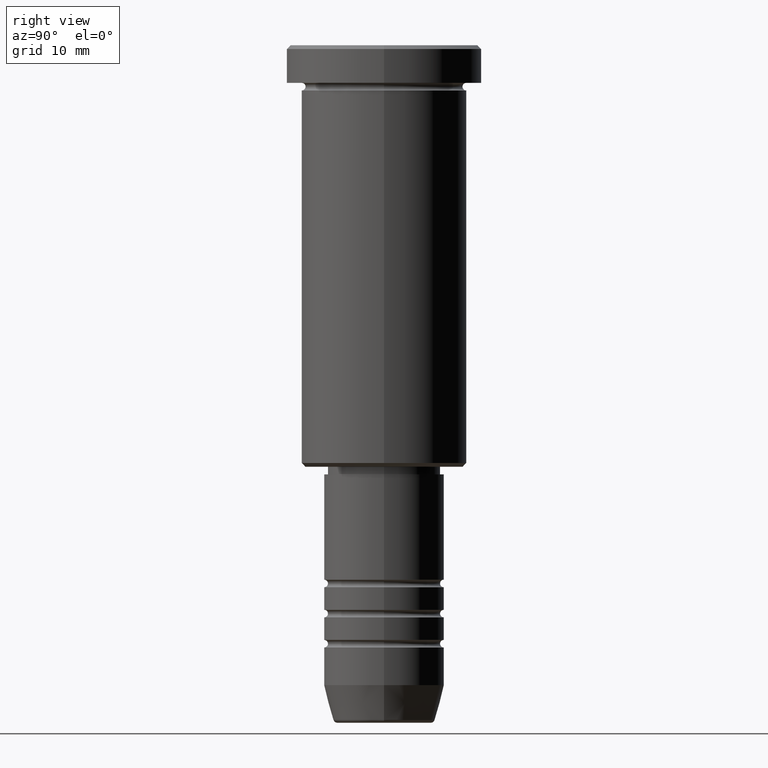
[diagram: clean part render]
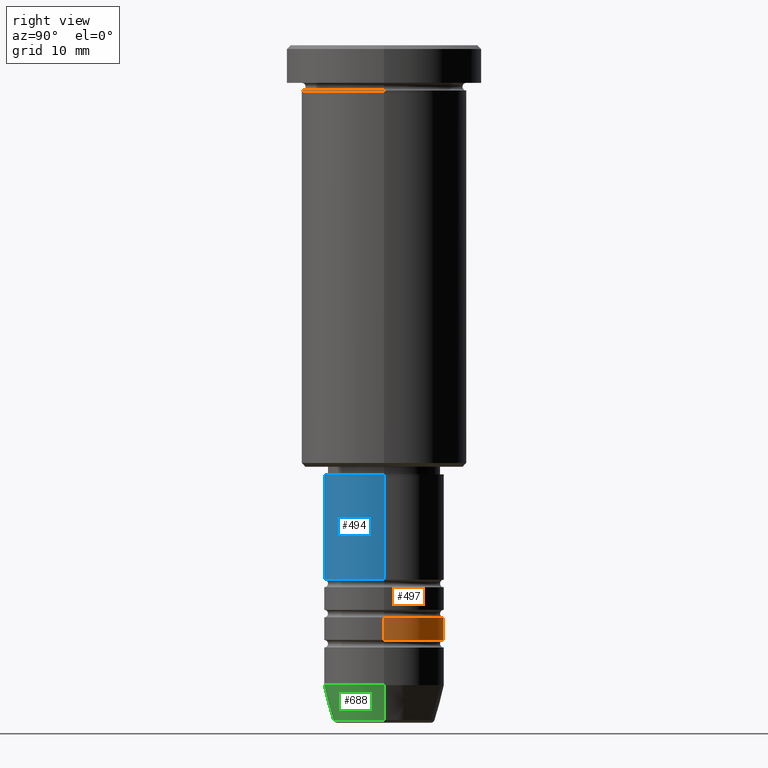
[diagram: same view with three faces highlighted in distinct colors, each labeled with its STEP entity id]
A machine part, right view with three faces highlighted in distinct colors.
Their STEP definitions:

[orange] entity #497 — the highlighted cylindrical surface (partial cylindrical patch) has radius 8 mm, axis along (-0, -0, 1).
#10 = ORIENTED_EDGE ( 'NONE', *, *, #776, .F. ) ;
#24 = DIRECTION ( 'NONE',  ( 1.000000000000000000, 0.000000000000000000, 0.000000000000000000 ) ) ;
#37 = CIRCLE ( 'NONE', #577, 8.000000000000000000 ) ;
#49 = VERTEX_POINT ( 'NONE', #903 ) ;
#50 = CARTESIAN_POINT ( 'NONE',  ( 8.000000000000000000, 0.000000000000000000, 0.000000000000000000 ) ) ;
#110 = DIRECTION ( 'NONE',  ( -0.000000000000000000, -0.000000000000000000, 1.000000000000000000 ) ) ;
#128 = LINE ( 'NONE', #50, #877 ) ;
#151 = CIRCLE ( 'NONE', #483, 8.000000000000000000 ) ;
#223 = EDGE_LOOP ( 'NONE', ( #830, #308, #10, #781 ) ) ;
#251 = FACE_OUTER_BOUND ( 'NONE', #223, .T. ) ;
#308 = ORIENTED_EDGE ( 'NONE', *, *, #641, .T. ) ;
#362 = VECTOR ( 'NONE', #482, 1000.000000000000000 ) ;
#365 = CYLINDRICAL_SURFACE ( 'NONE', #650, 8.000000000000000000 ) ;
#370 = EDGE_CURVE ( 'NONE', #407, #1073, #128, .T. ) ;
#372 = CARTESIAN_POINT ( 'NONE',  ( 8.000000000000000000, 0.000000000000000000, -75.99999999999998579 ) ) ;
#380 = CARTESIAN_POINT ( 'NONE',  ( 0.000000000000000000, 0.000000000000000000, -75.99999999999998579 ) ) ;
#407 = VERTEX_POINT ( 'NONE', #418 ) ;
#418 = CARTESIAN_POINT ( 'NONE',  ( 8.000000000000000000, 0.000000000000000000, -78.99999999999997158 ) ) ;
#456 = CARTESIAN_POINT ( 'NONE',  ( 0.000000000000000000, 0.000000000000000000, -78.99999999999997158 ) ) ;
#466 = DIRECTION ( 'NONE',  ( 1.000000000000000000, 0.000000000000000000, 0.000000000000000000 ) ) ;
#482 = DIRECTION ( 'NONE',  ( -0.000000000000000000, -0.000000000000000000, 1.000000000000000000 ) ) ;
#483 = AXIS2_PLACEMENT_3D ( 'NONE', #380, #110, #24 ) ;
#497 = ADVANCED_FACE ( 'NONE', ( #251 ), #365, .T. ) ;
#573 = CARTESIAN_POINT ( 'NONE',  ( -8.000000000000000000, 9.797174393178825657E-16, 0.000000000000000000 ) ) ;
#577 = AXIS2_PLACEMENT_3D ( 'NONE', #456, #638, #466 ) ;
#586 = EDGE_CURVE ( 'NONE', #407, #1001, #37, .T. ) ;
#638 = DIRECTION ( 'NONE',  ( -0.000000000000000000, -0.000000000000000000, 1.000000000000000000 ) ) ;
#641 = EDGE_CURVE ( 'NONE', #1001, #49, #672, .T. ) ;
#650 = AXIS2_PLACEMENT_3D ( 'NONE', #909, #805, #817 ) ;
#672 = LINE ( 'NONE', #573, #362 ) ;
#704 = DIRECTION ( 'NONE',  ( -0.000000000000000000, -0.000000000000000000, 1.000000000000000000 ) ) ;
#717 = CARTESIAN_POINT ( 'NONE',  ( -8.000000000000000000, 9.797174393178825657E-16, -78.99999999999997158 ) ) ;
#776 = EDGE_CURVE ( 'NONE', #1073, #49, #151, .T. ) ;
#781 = ORIENTED_EDGE ( 'NONE', *, *, #370, .F. ) ;
#805 = DIRECTION ( 'NONE',  ( -0.000000000000000000, -0.000000000000000000, 1.000000000000000000 ) ) ;
#817 = DIRECTION ( 'NONE',  ( 1.000000000000000000, 0.000000000000000000, 0.000000000000000000 ) ) ;
#830 = ORIENTED_EDGE ( 'NONE', *, *, #586, .T. ) ;
#877 = VECTOR ( 'NONE', #704, 1000.000000000000000 ) ;
#903 = CARTESIAN_POINT ( 'NONE',  ( -8.000000000000000000, 9.797174393178825657E-16, -75.99999999999998579 ) ) ;
#909 = CARTESIAN_POINT ( 'NONE',  ( 0.000000000000000000, 0.000000000000000000, 0.000000000000000000 ) ) ;
#1001 = VERTEX_POINT ( 'NONE', #717 ) ;
#1073 = VERTEX_POINT ( 'NONE', #372 ) ;

[blue] entity #494 — the highlighted cylindrical surface (partial cylindrical patch) has radius 8 mm, axis along (-0, -0, 1).
#44 = VERTEX_POINT ( 'NONE', #1080 ) ;
#113 = EDGE_LOOP ( 'NONE', ( #1076, #553, #336, #544 ) ) ;
#127 = CARTESIAN_POINT ( 'NONE',  ( -8.000000000000000000, 9.797174393178825657E-16, -57.00000000000000711 ) ) ;
#130 = AXIS2_PLACEMENT_3D ( 'NONE', #175, #1082, #459 ) ;
#140 = EDGE_CURVE ( 'NONE', #410, #1117, #419, .T. ) ;
#175 = CARTESIAN_POINT ( 'NONE',  ( 0.000000000000000000, 0.000000000000000000, 0.000000000000000000 ) ) ;
#253 = DIRECTION ( 'NONE',  ( 1.000000000000000000, 0.000000000000000000, 0.000000000000000000 ) ) ;
#311 = DIRECTION ( 'NONE',  ( 1.000000000000000000, 0.000000000000000000, 0.000000000000000000 ) ) ;
#336 = ORIENTED_EDGE ( 'NONE', *, *, #477, .T. ) ;
#379 = VECTOR ( 'NONE', #555, 1000.000000000000000 ) ;
#410 = VERTEX_POINT ( 'NONE', #709 ) ;
#419 = CIRCLE ( 'NONE', #783, 8.000000000000000000 ) ;
#438 = CYLINDRICAL_SURFACE ( 'NONE', #130, 8.000000000000000000 ) ;
#459 = DIRECTION ( 'NONE',  ( 1.000000000000000000, 0.000000000000000000, 0.000000000000000000 ) ) ;
#477 = EDGE_CURVE ( 'NONE', #1117, #44, #518, .T. ) ;
#494 = ADVANCED_FACE ( 'NONE', ( #643 ), #438, .T. ) ;
#503 = AXIS2_PLACEMENT_3D ( 'NONE', #774, #1050, #311 ) ;
#514 = EDGE_CURVE ( 'NONE', #410, #889, #734, .T. ) ;
#518 = LINE ( 'NONE', #878, #860 ) ;
#544 = ORIENTED_EDGE ( 'NONE', *, *, #898, .F. ) ;
#553 = ORIENTED_EDGE ( 'NONE', *, *, #140, .T. ) ;
#555 = DIRECTION ( 'NONE',  ( -0.000000000000000000, -0.000000000000000000, 1.000000000000000000 ) ) ;
#620 = CARTESIAN_POINT ( 'NONE',  ( -8.000000000000000000, 9.797174393178825657E-16, 0.000000000000000000 ) ) ;
#623 = CARTESIAN_POINT ( 'NONE',  ( 0.000000000000000000, 0.000000000000000000, -70.99999999999998579 ) ) ;
#643 = FACE_OUTER_BOUND ( 'NONE', #113, .T. ) ;
#709 = CARTESIAN_POINT ( 'NONE',  ( -8.000000000000000000, 9.797174393178825657E-16, -70.99999999999998579 ) ) ;
#734 = LINE ( 'NONE', #620, #379 ) ;
#748 = CIRCLE ( 'NONE', #503, 8.000000000000000000 ) ;
#774 = CARTESIAN_POINT ( 'NONE',  ( 0.000000000000000000, 0.000000000000000000, -57.00000000000000711 ) ) ;
#783 = AXIS2_PLACEMENT_3D ( 'NONE', #623, #814, #253 ) ;
#814 = DIRECTION ( 'NONE',  ( -0.000000000000000000, -0.000000000000000000, 1.000000000000000000 ) ) ;
#860 = VECTOR ( 'NONE', #990, 1000.000000000000000 ) ;
#878 = CARTESIAN_POINT ( 'NONE',  ( 8.000000000000000000, 0.000000000000000000, 0.000000000000000000 ) ) ;
#889 = VERTEX_POINT ( 'NONE', #127 ) ;
#898 = EDGE_CURVE ( 'NONE', #889, #44, #748, .T. ) ;
#990 = DIRECTION ( 'NONE',  ( -0.000000000000000000, -0.000000000000000000, 1.000000000000000000 ) ) ;
#1050 = DIRECTION ( 'NONE',  ( -0.000000000000000000, -0.000000000000000000, 1.000000000000000000 ) ) ;
#1076 = ORIENTED_EDGE ( 'NONE', *, *, #514, .F. ) ;
#1080 = CARTESIAN_POINT ( 'NONE',  ( 8.000000000000000000, 0.000000000000000000, -57.00000000000000711 ) ) ;
#1082 = DIRECTION ( 'NONE',  ( -0.000000000000000000, -0.000000000000000000, 1.000000000000000000 ) ) ;
#1096 = CARTESIAN_POINT ( 'NONE',  ( 8.000000000000000000, 0.000000000000000000, -70.99999999999998579 ) ) ;
#1117 = VERTEX_POINT ( 'NONE', #1096 ) ;

[green] entity #688 — the highlighted conical surface has half-angle 15 deg.
#9 = DIRECTION ( 'NONE',  ( -0.000000000000000000, -0.000000000000000000, 1.000000000000000000 ) ) ;
#12 = DIRECTION ( 'NONE',  ( 1.000000000000000000, 0.000000000000000000, 0.000000000000000000 ) ) ;
#56 = DIRECTION ( 'NONE',  ( 1.000000000000000000, 0.000000000000000000, 0.000000000000000000 ) ) ;
#95 = VERTEX_POINT ( 'NONE', #702 ) ;
#99 = CARTESIAN_POINT ( 'NONE',  ( 6.759553456999436882, 0.000000000000000000, -89.62940952255125637 ) ) ;
#106 = CARTESIAN_POINT ( 'NONE',  ( 8.000000000000000000, 0.000000000000000000, -84.99999999999998579 ) ) ;
#142 = VERTEX_POINT ( 'NONE', #163 ) ;
#161 = DIRECTION ( 'NONE',  ( 1.000000000000000000, 0.000000000000000000, 0.000000000000000000 ) ) ;
#163 = CARTESIAN_POINT ( 'NONE',  ( -6.759553456999437770, 9.037619948979306213E-16, -89.62940952255125637 ) ) ;
#172 = AXIS2_PLACEMENT_3D ( 'NONE', #611, #884, #56 ) ;
#178 = DIRECTION ( 'NONE',  ( -0.2588190451025214611, 3.169619151431774186E-17, 0.9659258262890679791 ) ) ;
#206 = FACE_OUTER_BOUND ( 'NONE', #1006, .T. ) ;
#215 = CARTESIAN_POINT ( 'NONE',  ( 0.000000000000000000, 0.000000000000000000, -84.99999999999998579 ) ) ;
#342 = AXIS2_PLACEMENT_3D ( 'NONE', #1004, #9, #161 ) ;
#373 = CARTESIAN_POINT ( 'NONE',  ( 8.000000000000000000, 0.000000000000000000, -84.99999999999998579 ) ) ;
#381 = VECTOR ( 'NONE', #178, 1000.000000000000114 ) ;
#405 = EDGE_CURVE ( 'NONE', #142, #540, #900, .T. ) ;
#427 = ORIENTED_EDGE ( 'NONE', *, *, #538, .F. ) ;
#476 = DIRECTION ( 'NONE',  ( 0.2588190451025214611, 0.000000000000000000, 0.9659258262890679791 ) ) ;
#488 = DIRECTION ( 'NONE',  ( -0.000000000000000000, -0.000000000000000000, 1.000000000000000000 ) ) ;
#505 = ORIENTED_EDGE ( 'NONE', *, *, #961, .F. ) ;
#538 = EDGE_CURVE ( 'NONE', #95, #647, #766, .T. ) ;
#540 = VERTEX_POINT ( 'NONE', #99 ) ;
#611 = CARTESIAN_POINT ( 'NONE',  ( 0.000000000000000000, 0.000000000000000000, -89.62940952255125637 ) ) ;
#614 = VECTOR ( 'NONE', #476, 1000.000000000000114 ) ;
#647 = VERTEX_POINT ( 'NONE', #373 ) ;
#688 = ADVANCED_FACE ( 'NONE', ( #206 ), #768, .T. ) ;
#702 = CARTESIAN_POINT ( 'NONE',  ( -8.000000000000000000, 9.797174393178825657E-16, -84.99999999999998579 ) ) ;
#732 = ORIENTED_EDGE ( 'NONE', *, *, #405, .T. ) ;
#745 = EDGE_CURVE ( 'NONE', #540, #647, #925, .T. ) ;
#766 = CIRCLE ( 'NONE', #342, 8.000000000000000000 ) ;
#768 = CONICAL_SURFACE ( 'NONE', #807, 8.000000000000000000, 0.2617993877991502405 ) ;
#807 = AXIS2_PLACEMENT_3D ( 'NONE', #215, #488, #12 ) ;
#884 = DIRECTION ( 'NONE',  ( -0.000000000000000000, -0.000000000000000000, 1.000000000000000000 ) ) ;
#900 = CIRCLE ( 'NONE', #172, 6.759553456999436882 ) ;
#925 = LINE ( 'NONE', #106, #614 ) ;
#946 = ORIENTED_EDGE ( 'NONE', *, *, #745, .T. ) ;
#961 = EDGE_CURVE ( 'NONE', #142, #95, #998, .T. ) ;
#989 = CARTESIAN_POINT ( 'NONE',  ( -8.000000000000000000, 9.797174393178825657E-16, -84.99999999999998579 ) ) ;
#998 = LINE ( 'NONE', #989, #381 ) ;
#1004 = CARTESIAN_POINT ( 'NONE',  ( 0.000000000000000000, 0.000000000000000000, -84.99999999999998579 ) ) ;
#1006 = EDGE_LOOP ( 'NONE', ( #505, #732, #946, #427 ) ) ;